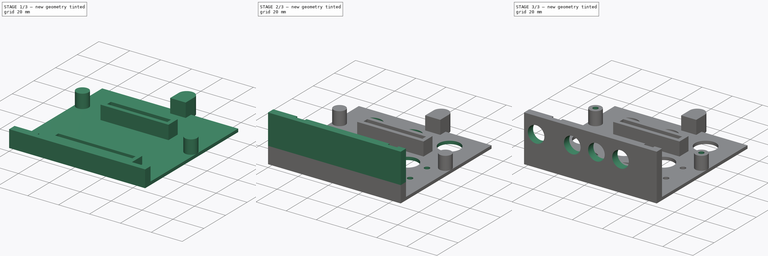
[diagram: build sequence overview — one tinted view per stage of 3, left to right]
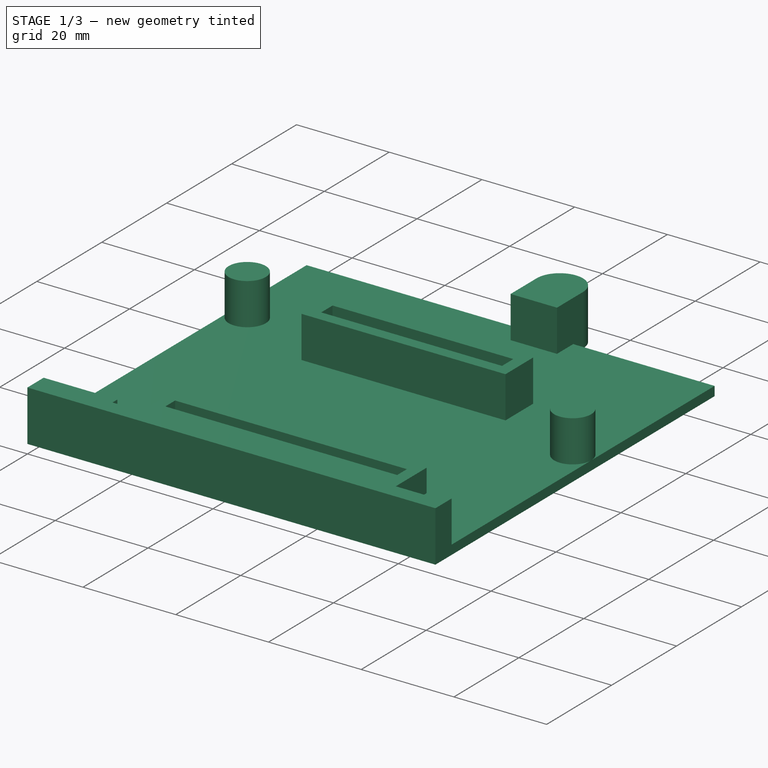
[diagram: stage 1 of 3 — iso view after this stage's code; geometry added in this stage tinted green]
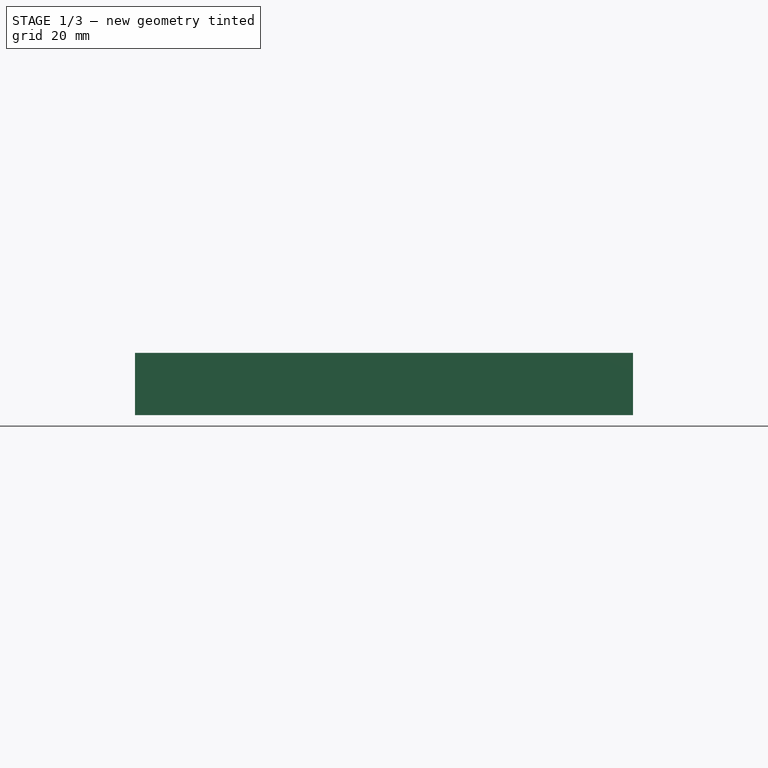
[diagram: stage 1 of 3 — front view after this stage's code; geometry added in this stage tinted green]
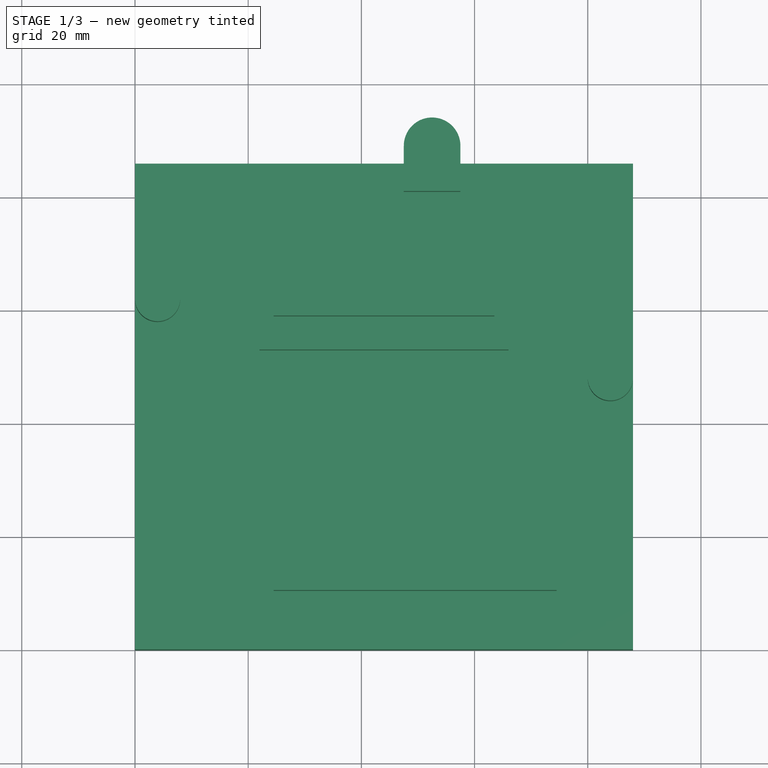
[diagram: stage 1 of 3 — top view after this stage's code; geometry added in this stage tinted green]
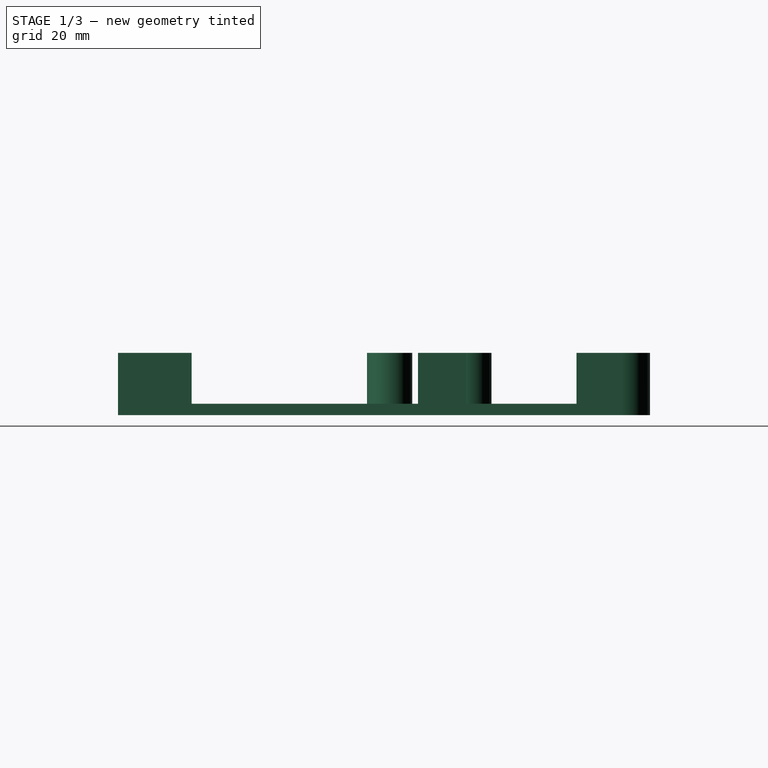
[diagram: stage 1 of 3 — right view after this stage's code; geometry added in this stage tinted green]
FCSTD DOCUMENT  (FreeCAD 0.14R3700 (Git))
Label: Open Frame for Combined
License: CC-BY 3.0
LicenseURL: http://creativecommons.org/licenses/by/3.0/
objects: Sketcher::SketchObject×6, PartDesign::Pad×3, PartDesign::Pocket×3
note: 18 computed .brp shape members not serialized (recipe doc carries the construction recipe); baked Part::Feature solids carry a one-line shape summary decoded from their .brp

FEATURE [Sketcher::SketchObject] Sketch  label="Rough Outline"
  sketch-geometry (8):
    g0: LineSegment StartX=0 StartY=0 StartZ=0 EndX=0 EndY=86 EndZ=0
    g1: LineSegment StartX=0 StartY=86 StartZ=0 EndX=47.5 EndY=86 EndZ=0
    g2: LineSegment StartX=47.5 StartY=86 StartZ=0 EndX=47.5 EndY=89 EndZ=0
    g3: ArcOfCircle CenterX=52.5 CenterY=89 CenterZ=0 NormalX=0 NormalY=0 NormalZ=1 Radius=5 StartAngle=6.28319 EndAngle=9.42478
    g4: LineSegment StartX=57.5 StartY=89 StartZ=0 EndX=57.5 EndY=86 EndZ=0
    g5: LineSegment StartX=57.5 StartY=86 StartZ=0 EndX=88 EndY=86 EndZ=0
    g6: LineSegment StartX=88 StartY=86 StartZ=0 EndX=88 EndY=0 EndZ=0
    g7: LineSegment StartX=88 StartY=0 StartZ=0 EndX=0 EndY=0 EndZ=0
  constraints (24):
    c: Coincident(g0,g1)
    c: Coincident(g1,g2)
    c: Coincident(g4,g5)
    c: Coincident(g5,g6)
    c: Coincident(g6,g7)
    c: Vertical(g0)
    c: Vertical(g6)
    c: Horizontal(g7)
    c: Horizontal(g1)
    c: Horizontal(g5)
    c: Vertical(g2)
    c: Vertical(g4)
    c: Coincident(g7,g-1)
    c: DistanceY(g0) = 86
    c: Coincident(g0,g-1)
    c: DistanceX(g7) = -88
    c: DistanceY(g4) = -3
    c: Coincident(g3,g2)
    c: Coincident(g4,g3)
    c: DistanceY(g6) = -86
    c: Equal(g2,g4)
    c: Tangent(g2,g3)
    c: DistanceX(g0,g1) = 47.5
    c: DistanceX(g1,g4) = 10
FEATURE [PartDesign::Pad] Pad
  Length = 2
  Length2 = 100
  Sketch = -> Sketch
  Type = 0
FEATURE [Sketcher::SketchObject] Sketch001  label="Risers to PCB level - 9mm"
  Placement = pos=(0,0,2) rot=(0,0,1;0rad)
  Support = -> Pad [Face10]
  sketch-geometry (31):
    g0: LineSegment StartX=22 StartY=13 StartZ=0 EndX=77 EndY=13 EndZ=0
    g1: LineSegment StartX=77 StartY=13 StartZ=0 EndX=77 EndY=3.5 EndZ=0
    g2: LineSegment StartX=22 StartY=61.5 StartZ=0 EndX=66 EndY=61.5 EndZ=0
    g3: LineSegment StartX=66 StartY=61.5 StartZ=0 EndX=66 EndY=53 EndZ=0
    g4: LineSegment StartX=66 StartY=53 StartZ=0 EndX=22 EndY=53 EndZ=0
    g5: LineSegment StartX=22 StartY=53 StartZ=0 EndX=22 EndY=61.5 EndZ=0
    g6: LineSegment StartX=24.5 StartY=10.5 StartZ=0 EndX=74.5 EndY=10.5 EndZ=0
    g7: LineSegment StartX=74.5 StartY=10.5 StartZ=0 EndX=74.5 EndY=7.5 EndZ=0
    g8: LineSegment StartX=74.5 StartY=7.5 StartZ=0 EndX=24.5 EndY=7.5 EndZ=0
    g9: LineSegment StartX=24.5 StartY=7.5 StartZ=0 EndX=24.5 EndY=10.5 EndZ=0
    g10: LineSegment StartX=24.5 StartY=59 StartZ=0 EndX=63.5 EndY=59 EndZ=0
    g11: LineSegment StartX=63.5 StartY=59 StartZ=0 EndX=63.5 EndY=55.5 EndZ=0
    g12: LineSegment StartX=63.5 StartY=55.5 StartZ=0 EndX=24.5 EndY=55.5 EndZ=0
    g13: LineSegment StartX=24.5 StartY=55.5 StartZ=0 EndX=24.5 EndY=59 EndZ=0
    g14: LineSegment StartX=47.5 StartY=89 StartZ=0 EndX=47.5 EndY=81 EndZ=0
    g15: LineSegment StartX=47.5 StartY=81 StartZ=0 EndX=57.5 EndY=81 EndZ=0
    g16: LineSegment StartX=57.5 StartY=81 StartZ=0 EndX=57.5 EndY=89 EndZ=0
    g17: ArcOfCircle CenterX=52.5 CenterY=89 CenterZ=0 NormalX=0 NormalY=0 NormalZ=1 Radius=5 StartAngle=-1.15e-10 EndAngle=3.14159
    g18: LineSegment StartX=0 StartY=48 StartZ=0 EndX=0 EndY=58 EndZ=0
    g19: Circle CenterX=4 CenterY=62 CenterZ=0 NormalX=0 NormalY=0 NormalZ=1 Radius=4
    g20: Circle CenterX=84 CenterY=48 CenterZ=0 NormalX=0 NormalY=0 NormalZ=1 Radius=4
    g21: LineSegment StartX=88 StartY=5 StartZ=0 EndX=88 EndY=0 EndZ=0
    g22: LineSegment StartX=0 StartY=0 StartZ=0 EndX=0 EndY=5 EndZ=0
    g23: LineSegment StartX=0 StartY=5 StartZ=0 EndX=15.9 EndY=5 EndZ=0
    g24: LineSegment StartX=0 StartY=0 StartZ=0 EndX=88 EndY=0 EndZ=0
    g25: LineSegment StartX=88 StartY=5 StartZ=0 EndX=83.1 EndY=5 EndZ=0
    g26: LineSegment StartX=83.1 StartY=5 StartZ=0 EndX=83.1 EndY=3.5 EndZ=0
    g27: LineSegment StartX=83.1 StartY=3.5 StartZ=0 EndX=77 EndY=3.5 EndZ=0
    g28: LineSegment StartX=15.9 StartY=5 StartZ=0 EndX=15.9 EndY=3.5 EndZ=0
    g29: LineSegment StartX=15.9 StartY=3.5 StartZ=0 EndX=22 EndY=3.5 EndZ=0
    g30: LineSegment StartX=22 StartY=3.5 StartZ=0 EndX=22 EndY=13 EndZ=0
  constraints (96):
    c: Coincident(g0,g1)
    c: Horizontal(g0)
    c: Vertical(g1)
    c: DistanceX(g0) = 55
    c: Coincident(g2,g3)
    c: Coincident(g3,g4)
    c: Coincident(g4,g5)
    c: Coincident(g5,g2)
    c: Horizontal(g2)
    c: Horizontal(g4)
    c: Vertical(g3)
    c: Vertical(g5)
    c: DistanceX(g2) = 44
    c: DistanceY(g3) = -8.5
    c: Coincident(g6,g7)
    c: Coincident(g7,g8)
    c: Coincident(g8,g9)
    c: Coincident(g9,g6)
    c: Horizontal(g6)
    c: Horizontal(g8)
    c: Vertical(g7)
    c: Vertical(g9)
    c: DistanceY(g0,g6) = -2.5
    c: DistanceX(g0,g6) = 2.5
    c: DistanceX(g7,g1) = 2.5
    c: Coincident(g10,g11)
    c: Coincident(g11,g12)
    c: Coincident(g12,g13)
    c: Coincident(g13,g10)
    c: Horizontal(g10)
    c: Horizontal(g12)
    c: Vertical(g11)
    c: Vertical(g13)
    c: DistanceX(g2,g10) = 2.5
    c: DistanceY(g10,g2) = 2.5
    c: DistanceY(g11,g3) = -2.5
    c: DistanceX(g11,g3) = 2.5
    c: DistanceX(g0,g4) = 0
    c: DistanceX(g-1,g8) = 24.5
    c: Coincident(g15,g16)
    c: Vertical(g14)
    c: Vertical(g16)
    c: Horizontal(g15)
    c: Coincident(g15,g14)
    c: Equal(g14,g16)
    c: DistanceY(g16) = 8
    c: DistanceX(g15) = 10
    c: DistanceX(g-1,g14) = 47.5
    c: Coincident(g17,g14)
    c: Coincident(g17,g16)
    c: Tangent(g14,g17)
    c: DistanceY(g-1,g14) = 81
    c: Vertical(g18)
    c: DistanceY(g18) = 10
    c: DistanceX(g-1,g18) = 0
    c: DistanceY(g-1,g18) = 48
    c: Radius(g19) = 4
    c: DistanceX(g-1,g19) = 4
    c: DistanceY(g-1,g19) = 62
    c: Radius(g20) = 4
    c: DistanceX(g-1,g20) = 84
    c: DistanceY(g-1,g20) = 48
    c: Coincident(g22,g23)
    c: Vertical(g22)
    c: Horizontal(g23)
    c: DistanceX(g21) = 88
    c: Coincident(g24,g-1)
    c: Coincident(g24,g21)
    c: DistanceY(g21) = 0
    c: Coincident(g25,g26)
    c: Coincident(g26,g27)
    c: Coincident(g28,g29)
    c: Coincident(g29,g30)
    c: Coincident(g30,g0)
    c: Vertical(g30)
    c: Vertical(g28)
    c: Horizontal(g29)
    c: DistanceY(g30) = 9.5
    c: DistanceX(g29) = 6.1
    c: Coincident(g23,g28)
    c: DistanceY(g22) = 5
    c: Coincident(g1,g27)
    c: Horizontal(g27)
    c: Horizontal(g25)
    c: Vertical(g21)
    c: DistanceY(g11,g7) = -48
    c: DistanceY(g1) = -9.5
    c: DistanceX(g25) = -4.9
    c: Vertical(g26)
    c: Coincident(g21,g25)
    c: DistanceY(g9) = 3
    c: DistanceY(g0) = 13
    c: Equal(g21,g22)
    c: Coincident(g22)
    c: Coincident(g-1)
    c: Coincident(g22,g-1)
FEATURE [PartDesign::Pad] Pad001
  Length = 9
  Length2 = 5
  Sketch = -> Sketch001
  Type = 0
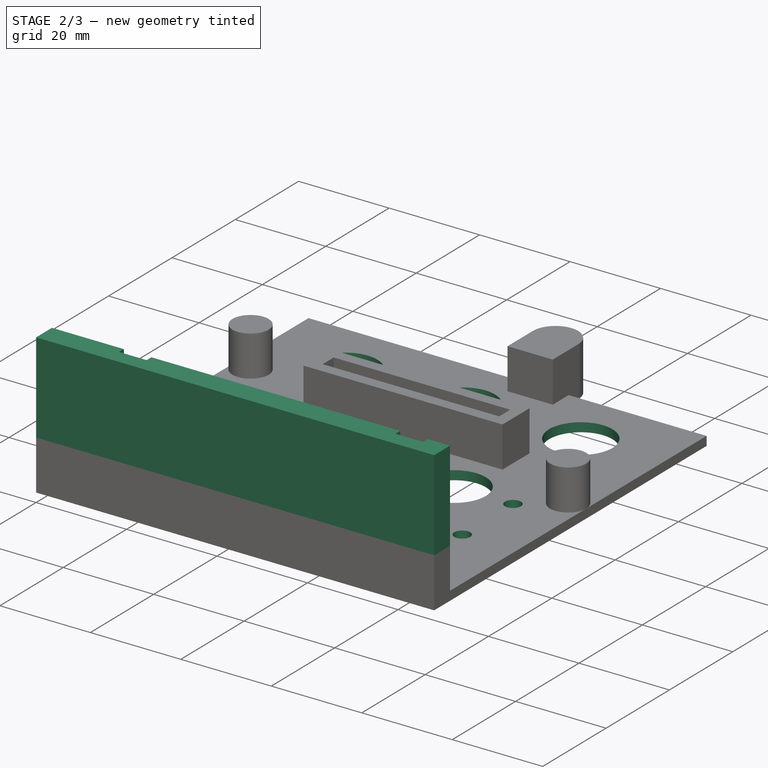
[diagram: stage 2 of 3 — iso view after this stage's code; geometry added in this stage tinted green]
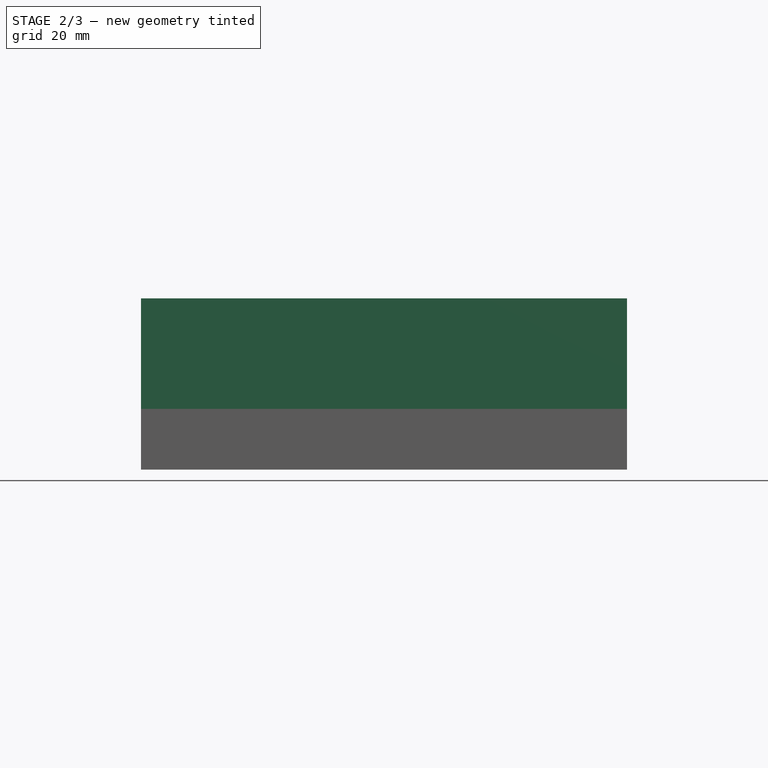
[diagram: stage 2 of 3 — front view after this stage's code; geometry added in this stage tinted green]
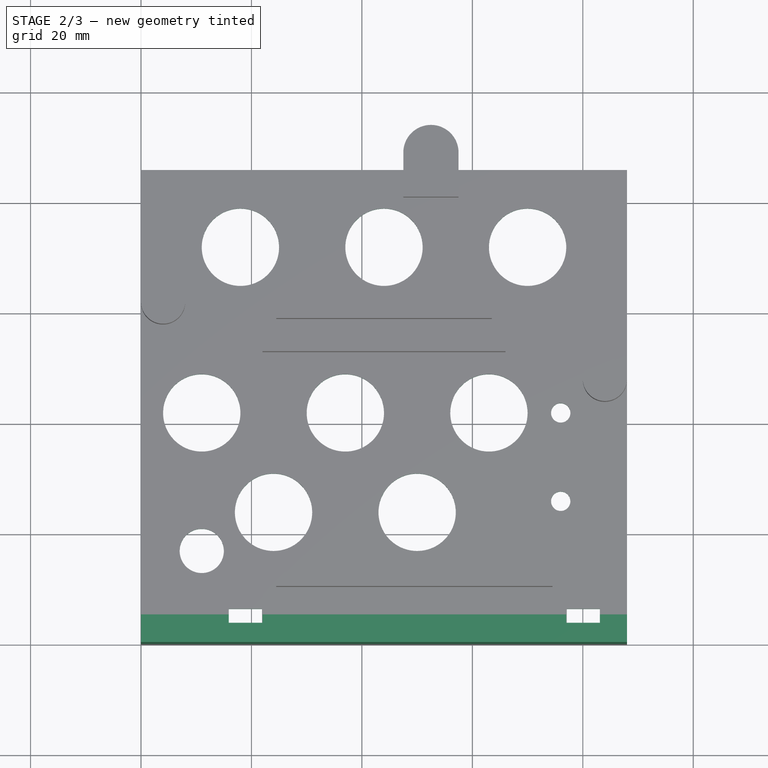
[diagram: stage 2 of 3 — top view after this stage's code; geometry added in this stage tinted green]
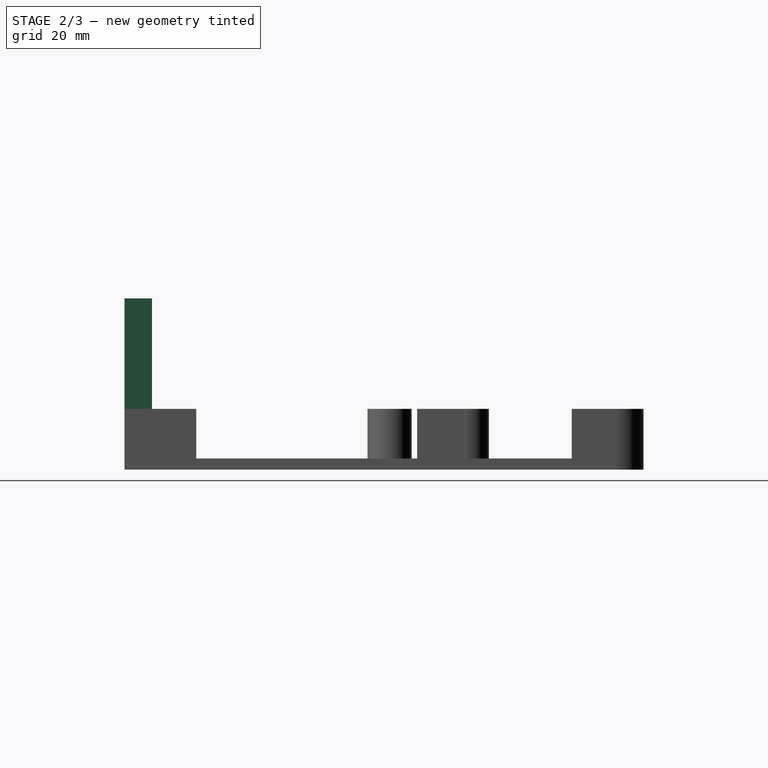
[diagram: stage 2 of 3 — right view after this stage's code; geometry added in this stage tinted green]
FEATURE [Sketcher::SketchObject] Sketch003  label="Holes thru base"
  Placement = pos=(0,0,2) rot=(0,0,1;0rad)
  Support = -> Pad001 [Face11]
  sketch-geometry (19):
    g0: Circle CenterX=76 CenterY=42 CenterZ=0 NormalX=0 NormalY=0 NormalZ=1 Radius=1.75
    g1: Circle CenterX=76 CenterY=26 CenterZ=0 NormalX=0 NormalY=0 NormalZ=1 Radius=1.75
    g2: Circle CenterX=37 CenterY=42 CenterZ=0 NormalX=0 NormalY=0 NormalZ=1 Radius=7
    g3: Circle CenterX=24 CenterY=24 CenterZ=0 NormalX=0 NormalY=0 NormalZ=1 Radius=7
    g4: Circle CenterX=63 CenterY=42 CenterZ=0 NormalX=0 NormalY=0 NormalZ=1 Radius=7
    g5: Circle CenterX=50 CenterY=24 CenterZ=0 NormalX=0 NormalY=0 NormalZ=1 Radius=7
    g6: Circle CenterX=70 CenterY=72 CenterZ=0 NormalX=0 NormalY=0 NormalZ=1 Radius=7
    g7: Circle CenterX=44 CenterY=72 CenterZ=0 NormalX=0 NormalY=0 NormalZ=1 Radius=7
    g8: Circle CenterX=18 CenterY=72 CenterZ=0 NormalX=0 NormalY=0 NormalZ=1 Radius=7
    g9: Circle CenterX=11 CenterY=42 CenterZ=0 NormalX=0 NormalY=0 NormalZ=1 Radius=7
    g10: LineSegment StartX=77.1 StartY=3.5 StartZ=0 EndX=83.1 EndY=3.5 EndZ=0
    g11: LineSegment StartX=83.1 StartY=3.5 StartZ=0 EndX=83.1 EndY=6.5 EndZ=0
    g12: LineSegment StartX=83.1 StartY=6.5 StartZ=0 EndX=77.1 EndY=6.5 EndZ=0
    g13: LineSegment StartX=77.1 StartY=6.5 StartZ=0 EndX=77.1 EndY=3.5 EndZ=0
    g14: LineSegment StartX=21.9 StartY=3.5 StartZ=0 EndX=15.9 EndY=3.5 EndZ=0
    g15: LineSegment StartX=15.9 StartY=3.5 StartZ=0 EndX=15.9 EndY=6.5 EndZ=0
    g16: LineSegment StartX=15.9 StartY=6.5 StartZ=0 EndX=21.9 EndY=6.5 EndZ=0
    g17: LineSegment StartX=21.9 StartY=6.5 StartZ=0 EndX=21.9 EndY=3.5 EndZ=0
    g18: Circle CenterX=11 CenterY=17 CenterZ=0 NormalX=0 NormalY=0 NormalZ=1 Radius=4
  constraints (57):
    c: DistanceY(g-1,g1) = 26
    c: Radius(g1) = 1.75
    c: Radius(g0) = 1.75
    c: DistanceY(g1,g0) = 16
    c: DistanceX(g1,g0) = 0
    c: DistanceX(g-1,g1) = 76
    c: Radius(g2) = 7
    c: Radius(g4) = 7
    c: Radius(g5) = 7
    c: Radius(g3) = 7
    c: Radius(g8) = 7
    c: Radius(g7) = 7
    c: Radius(g6) = 7
    c: Radius(g9) = 7
    c: DistanceY(g-1,g2) = 42
    c: DistanceY(g2,g4) = 0
    c: DistanceY(g-1,g3) = 24
    c: DistanceY(g5,g3) = 0
    c: DistanceX(g-1,g3) = 24
    c: DistanceX(g3,g5) = 26
    c: DistanceX(g2,g4) = 26
    c: DistanceY(g8,g7) = 0
    c: DistanceX(g7,g6) = 26
    c: DistanceY(g7,g6) = 0
    c: DistanceY(g8) = 72
    c: DistanceX(g8,g7) = 26
    c: DistanceX(g8) = 18
    c: Coincident(g10,g11)
    c: Coincident(g11,g12)
    c: Coincident(g12,g13)
    c: Coincident(g13,g10)
    c: Horizontal(g10)
    c: Horizontal(g12)
    c: Vertical(g11)
    c: Vertical(g13)
    c: Coincident(g14,g15)
    c: Coincident(g15,g16)
    c: Coincident(g16,g17)
    c: Coincident(g17,g14)
    c: Horizontal(g14)
    c: Horizontal(g16)
    c: Vertical(g15)
    c: Vertical(g17)
    c: Equal(g17,g13)
    c: Equal(g14,g10)
    c: DistanceY(g14) = 3.5
    c: DistanceX(g12) = -6
    c: DistanceX(g14) = 15.9
    c: DistanceX(g12,g16) = -55.2
    c: DistanceY(g12,g16) = 0
    c: DistanceY(g15) = 3
    c: DistanceX(g9,g2) = 26
    c: DistanceY(g9,g2) = 0
    c: Radius(g18) = 4
    c: DistanceX(g18) = 11
    c: DistanceY(g18) = 17
    c: DistanceX(g9) = 11
FEATURE [PartDesign::Pocket] Pocket
  Length = 5
  Sketch = -> Sketch003
  Type = 0
FEATURE [Sketcher::SketchObject] Sketch005  label="20mm battery standoff"
  Placement = pos=(0,0,11) rot=(0,0,1;0rad)
  Support = -> Pocket [Face32]
  sketch-geometry (12):
    g0: LineSegment StartX=0 StartY=0 StartZ=0 EndX=0 EndY=5 EndZ=0
    g1: LineSegment StartX=0 StartY=5 StartZ=0 EndX=15.9 EndY=5 EndZ=0
    g2: LineSegment StartX=15.9 StartY=5 StartZ=0 EndX=15.9 EndY=3.5 EndZ=0
    g3: LineSegment StartX=15.9 StartY=3.5 StartZ=0 EndX=22 EndY=3.5 EndZ=0
    g4: LineSegment StartX=22 StartY=3.5 StartZ=0 EndX=22 EndY=5 EndZ=0
    g5: LineSegment StartX=22 StartY=5 StartZ=0 EndX=77 EndY=5 EndZ=0
    g6: LineSegment StartX=77 StartY=5 StartZ=0 EndX=77 EndY=3.5 EndZ=0
    g7: LineSegment StartX=77 StartY=3.5 StartZ=0 EndX=83.1 EndY=3.5 EndZ=0
    g8: LineSegment StartX=83.1 StartY=3.5 StartZ=0 EndX=83.1 EndY=5 EndZ=0
    g9: LineSegment StartX=83.1 StartY=5 StartZ=0 EndX=88 EndY=5 EndZ=0
    g10: LineSegment StartX=88 StartY=5 StartZ=0 EndX=88 EndY=0 EndZ=0
    g11: LineSegment StartX=88 StartY=0 StartZ=0 EndX=0 EndY=0 EndZ=0
  constraints (35):
    c: Coincident(g0,g1)
    c: Coincident(g1,g2)
    c: Coincident(g2,g3)
    c: Coincident(g3,g4)
    c: Coincident(g4,g5)
    c: Coincident(g5,g6)
    c: Coincident(g6,g7)
    c: Coincident(g7,g8)
    c: Coincident(g8,g9)
    c: Coincident(g9,g10)
    c: Coincident(g10,g11)
    c: Coincident(g11,g0)
    c: Vertical(g10)
    c: Vertical(g0)
    c: Coincident(g-1,g0)
    c: DistanceY(g0) = 5
    c: DistanceY(g10) = -5
    c: Horizontal(g11)
    c: DistanceX(g11) = -88
    c: Horizontal(g1)
    c: Horizontal(g5)
    c: Horizontal(g9)
    c: Horizontal(g3)
    c: Horizontal(g7)
    c: Vertical(g2)
    c: Vertical(g4)
    c: Vertical(g6)
    c: Vertical(g8)
    c: DistanceY(g4) = 5
    c: Equal(g4,g6)
    c: DistanceY(g4) = 1.5
    c: Equal(g3,g7)
    c: DistanceX(g3) = 6.1
    c: DistanceX(g1) = 15.9
    c: DistanceX(g5) = 55
FEATURE [PartDesign::Pad] Pad002
  Length = 20
  Length2 = 5
  Sketch = -> Sketch005
  Type = 0
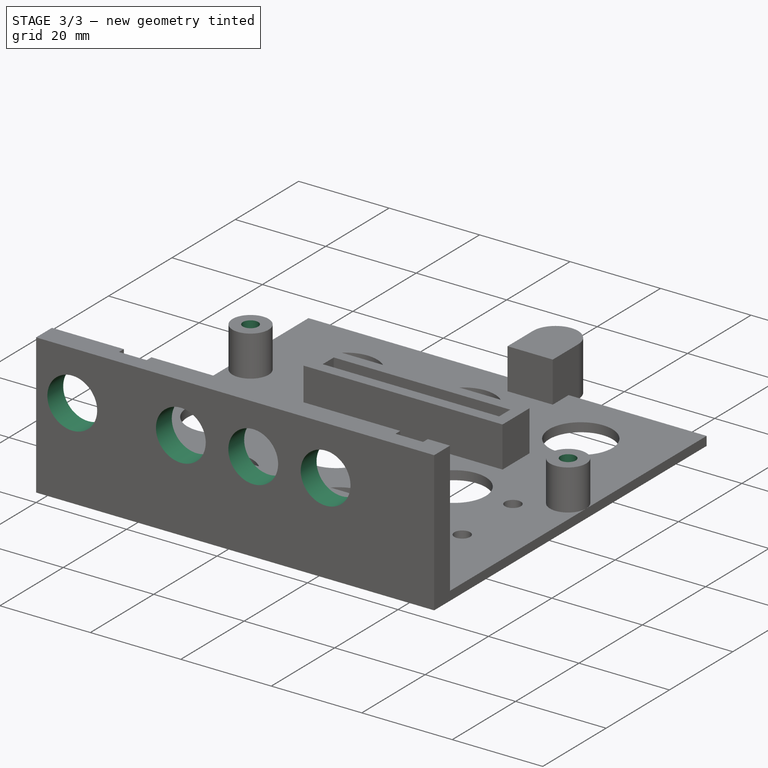
[diagram: stage 3 of 3 — iso view after this stage's code; geometry added in this stage tinted green]
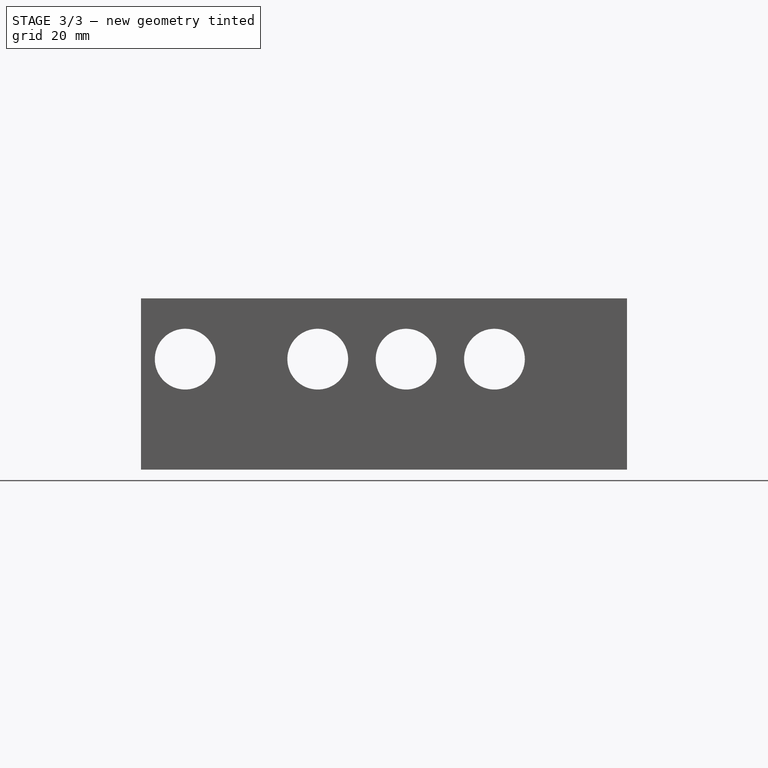
[diagram: stage 3 of 3 — front view after this stage's code; geometry added in this stage tinted green]
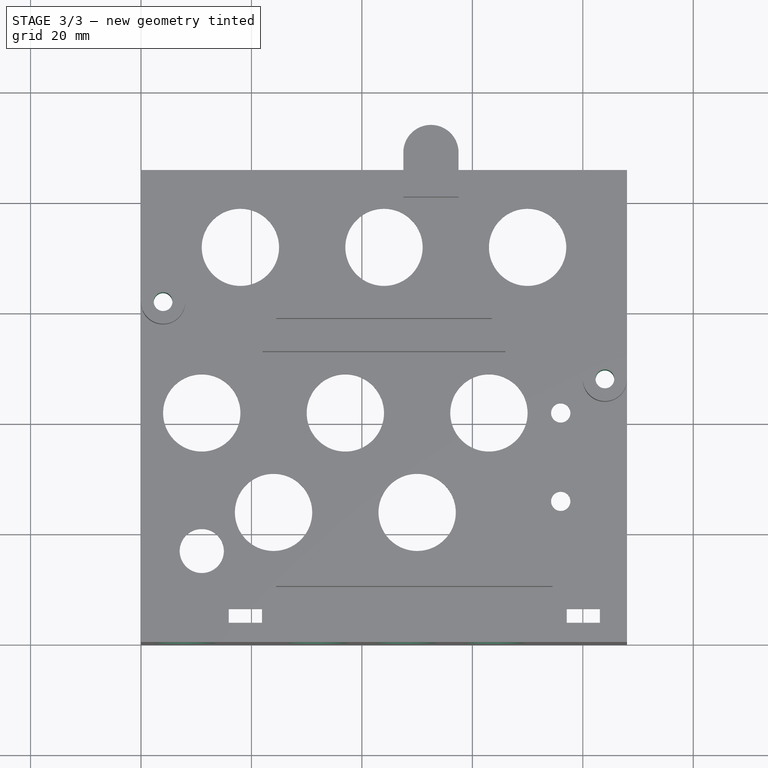
[diagram: stage 3 of 3 — top view after this stage's code; geometry added in this stage tinted green]
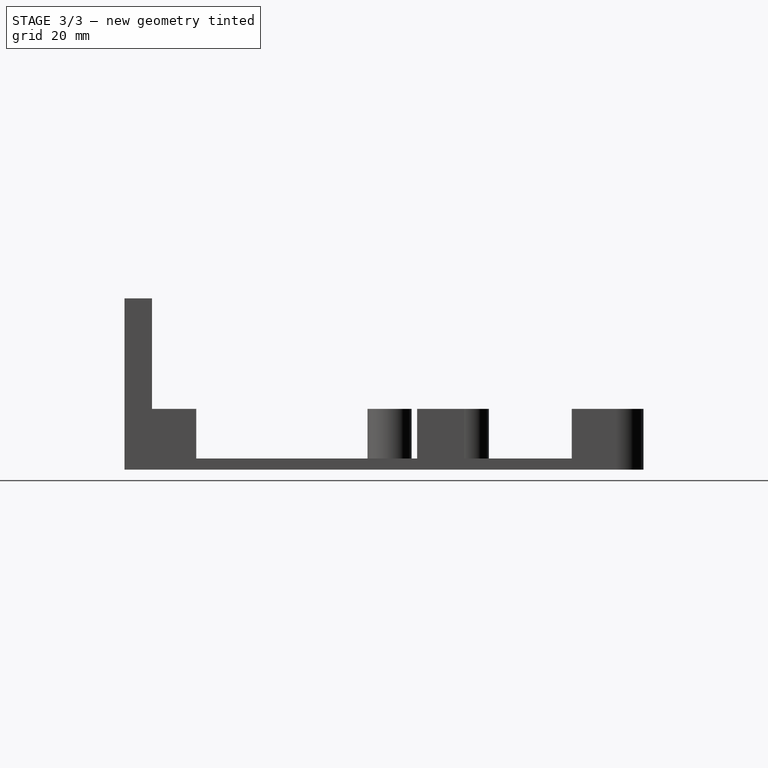
[diagram: stage 3 of 3 — right view after this stage's code; geometry added in this stage tinted green]
FEATURE [Sketcher::SketchObject] Sketch006  label="Holes in battery mount"
  Placement = pos=(0,0,0) rot=(1,0,0;1.5708rad)
  Support = -> Pad002 [Face50]
  sketch-geometry (4):
    g0: Circle CenterX=8 CenterY=20 CenterZ=0 NormalX=0 NormalY=0 NormalZ=1 Radius=5.5
    g1: Circle CenterX=32 CenterY=20 CenterZ=0 NormalX=0 NormalY=0 NormalZ=1 Radius=5.5
    g2: Circle CenterX=48 CenterY=20 CenterZ=0 NormalX=0 NormalY=0 NormalZ=1 Radius=5.5
    g3: Circle CenterX=64 CenterY=20 CenterZ=0 NormalX=0 NormalY=0 NormalZ=1 Radius=5.5
  constraints (12):
    c: DistanceY(g0,g1) = 0
    c: DistanceY(g2,g1) = 0
    c: DistanceX(g0,g1) = 24
    c: DistanceX(g1,g2) = 16
    c: Radius(g2) = 5.5
    c: Radius(g1) = 5.5
    c: Radius(g0) = 5.5
    c: DistanceX(g0) = 8
    c: DistanceY(g-1,g0) = 20
    c: Radius(g3) = 5.5
    c: DistanceY(g2,g3) = 0
    c: DistanceX(g2,g3) = 16
FEATURE [PartDesign::Pocket] Pocket001
  Length = 5
  Sketch = -> Sketch006
  Type = 0
FEATURE [Sketcher::SketchObject] Sketch004  label="Holes in stand offs"
  Placement = pos=(0,0,11) rot=(0,0,1;0rad)
  Support = -> Pocket001 [Face56]
  sketch-geometry (2):
    g0: Circle CenterX=4 CenterY=62 CenterZ=0 NormalX=0 NormalY=0 NormalZ=1 Radius=1.7
    g1: Circle CenterX=84 CenterY=48 CenterZ=0 NormalX=0 NormalY=0 NormalZ=1 Radius=1.7
  constraints (6):
    c: Radius(g0) = 1.7
    c: DistanceY(g0) = 62
    c: DistanceX(g0) = 4
    c: Radius(g1) = 1.7
    c: DistanceX(g1) = 84
    c: DistanceY(g1) = 48
FEATURE [PartDesign::Pocket] Pocket002
  Length = 11
  Sketch = -> Sketch004
  Type = 0
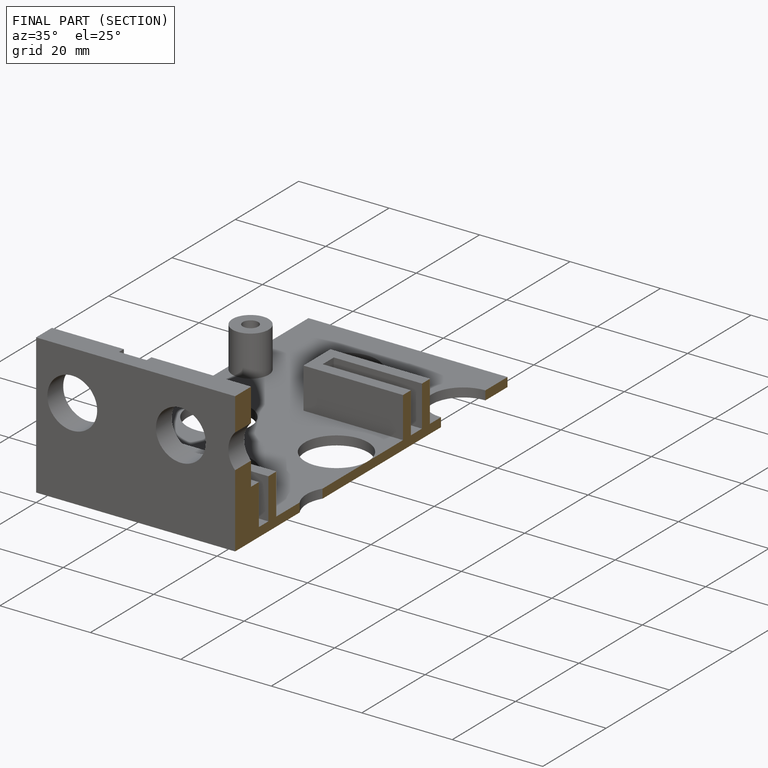
[diagram: finished part — half-section view (interior)]
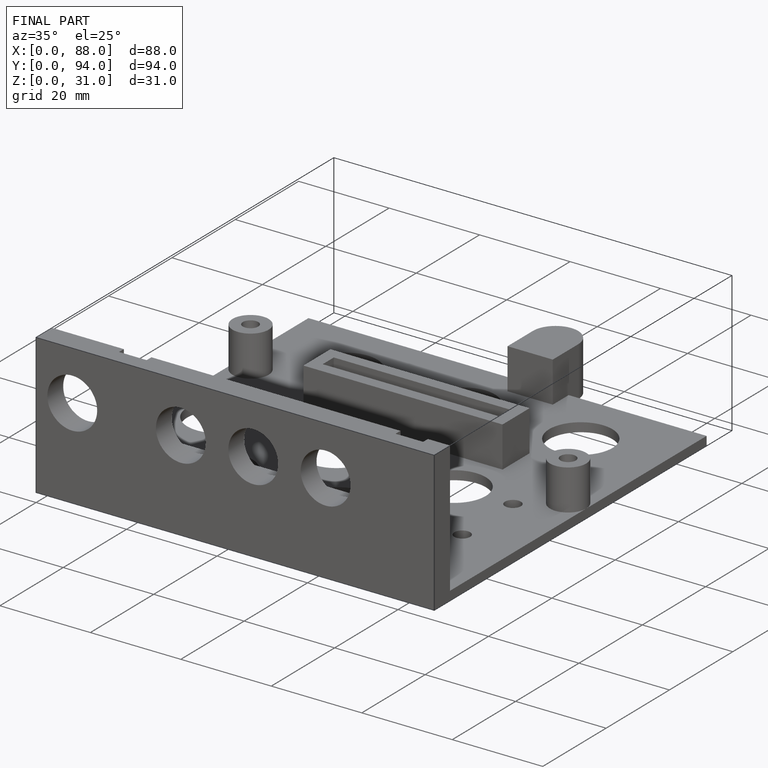
[diagram: finished part — iso view with bounding-box wireframe]
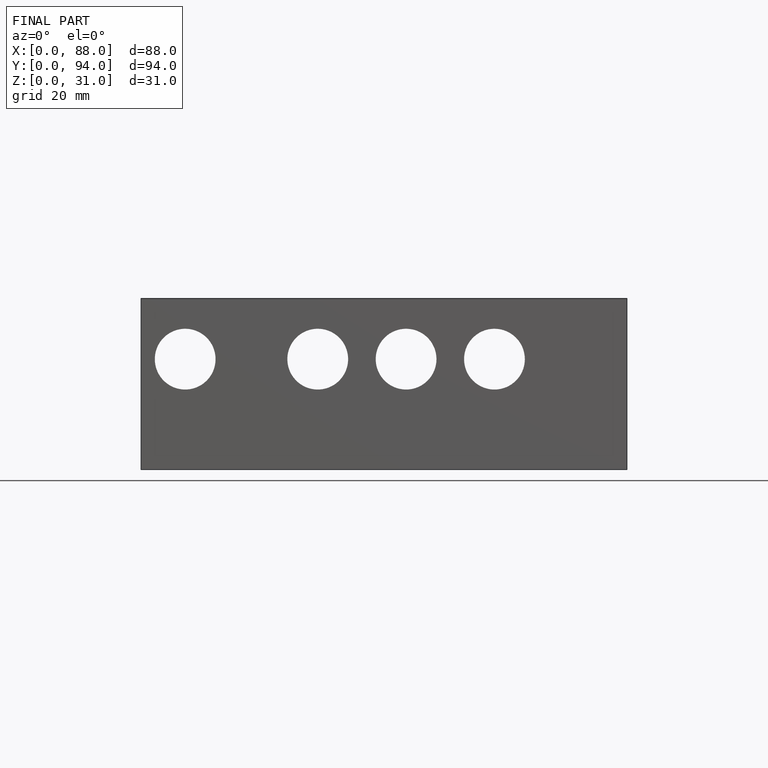
[diagram: finished part — front view with bounding-box wireframe]
